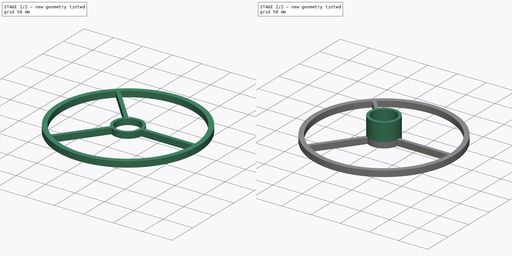
[diagram: build sequence overview — one tinted view per stage of 2, left to right]
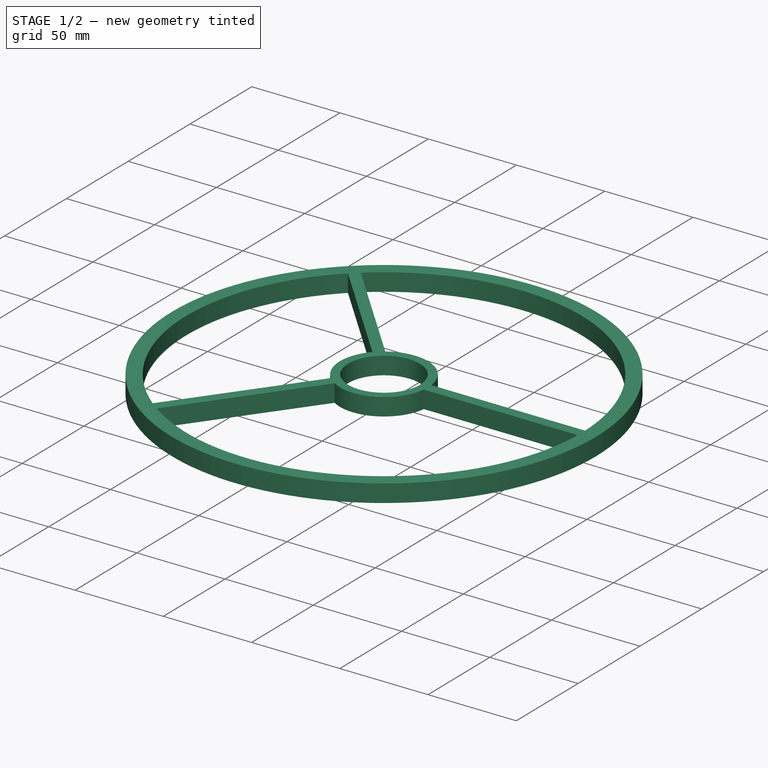
[diagram: stage 1 of 2 — iso view after this stage's code; geometry added in this stage tinted green]
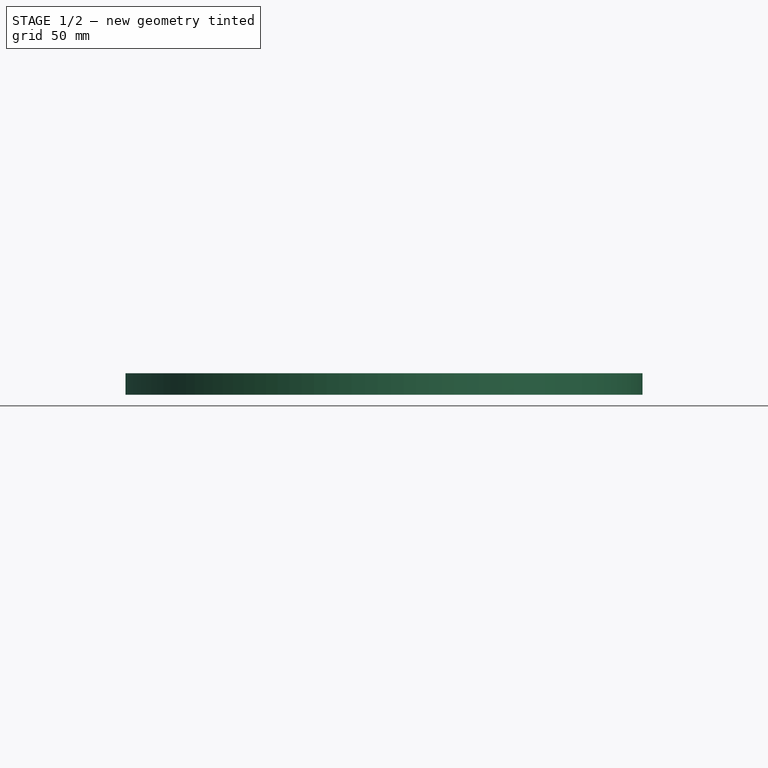
[diagram: stage 1 of 2 — front view after this stage's code; geometry added in this stage tinted green]
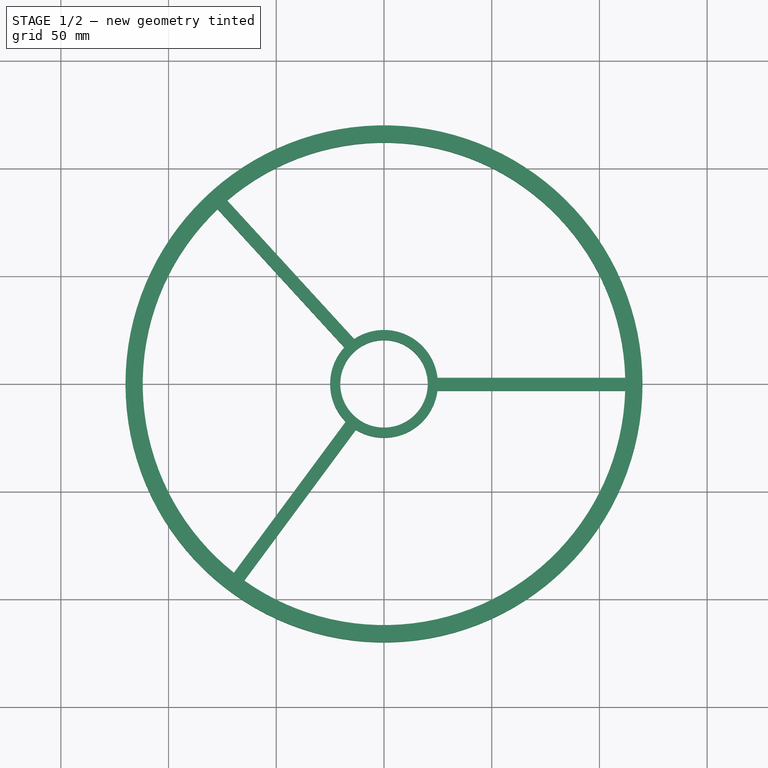
[diagram: stage 1 of 2 — top view after this stage's code; geometry added in this stage tinted green]
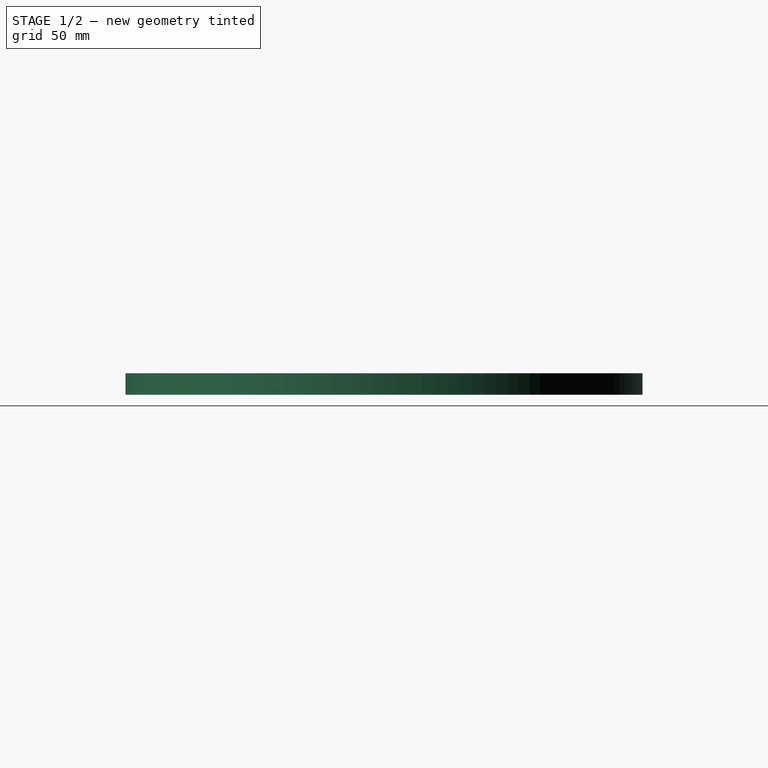
[diagram: stage 1 of 2 — right view after this stage's code; geometry added in this stage tinted green]
FCSTD DOCUMENT  (FreeCAD 0.19R23074 (Git))
Label: supporto1
License: All rights reserved
LicenseURL: http://en.wikipedia.org/wiki/All_rights_reserved
objects: Sketcher::SketchObject×2, PartDesign::Pad×2, PartDesign::Body×1
note: 7 computed .brp shape members not serialized (recipe doc carries the construction recipe); baked Part::Feature solids carry a one-line shape summary decoded from their .brp

FEATURE [Sketcher::SketchObject] Sketch
  MapMode = 5
  Support = -> [XY_Plane]
  sketch-geometry (14):
    g0: Circle CenterX=0 CenterY=0 CenterZ=0 NormalX=0 NormalY=0 NormalZ=1 AngleXU=0 Radius=120
    g1: ArcOfCircle CenterX=0 CenterY=0 CenterZ=0 NormalX=0 NormalY=0 NormalZ=1 AngleXU=0 Radius=112 StartAngle=0.0250396 EndAngle=2.27805
    g2: Circle CenterX=0 CenterY=0 CenterZ=0 NormalX=0 NormalY=0 NormalZ=1 AngleXU=0 Radius=20.3
    g3: ArcOfCircle CenterX=0 CenterY=0 CenterZ=0 NormalX=0 NormalY=0 NormalZ=1 AngleXU=0 Radius=25 StartAngle=0.112402 EndAngle=2.15743
    g4: LineSegment StartX=24.8422 StartY=2.80415 StartZ=0 EndX=111.965 EndY=2.80415 EndZ=0
    g5: LineSegment StartX=24.7949 StartY=-3.19567 StartZ=0 EndX=111.954 EndY=-3.19567 EndZ=0
    g6: LineSegment StartX=-13.076 StartY=-21.3077 StartZ=0 EndX=-64.8727 EndY=-91.2991 EndZ=0
    g7: LineSegment StartX=-17.7763 StartY=-17.5785 StartZ=0 EndX=-69.6689 EndY=-87.694 EndZ=0
    g8: ArcOfCircle CenterX=0 CenterY=0 CenterZ=0 NormalX=0 NormalY=0 NormalZ=1 AngleXU=0 Radius=25 StartAngle=4.16198 EndAngle=6.15501
    g9: ArcOfCircle CenterX=0 CenterY=0 CenterZ=0 NormalX=0 NormalY=0 NormalZ=1 AngleXU=0 Radius=112 StartAngle=4.09462 EndAngle=6.25465
    g10: LineSegment StartX=-13.839 StartY=20.8202 StartZ=0 EndX=-72.7719 EndY=85.1367 EndZ=0
    g11: LineSegment StartX=-18.4012 StartY=16.9232 StartZ=0 EndX=-77.2267 EndY=81.1174 EndZ=0
    g12: ArcOfCircle CenterX=0 CenterY=0 CenterZ=0 NormalX=0 NormalY=0 NormalZ=1 AngleXU=0 Radius=112 StartAngle=2.33163 EndAngle=4.04104
    g13: ArcOfCircle CenterX=0 CenterY=0 CenterZ=0 NormalX=0 NormalY=0 NormalZ=1 AngleXU=0 Radius=25 StartAngle=2.39801 EndAngle=3.9214
  constraints (34):
    c: Coincident(g0,g-1)
    c: Radius(g0) = 120
    c: Coincident(g1,g0)
    c: Radius(g1) = 112
    c: Coincident(g2,g0)
    c: Radius(g2) = 20.3
    c: Coincident(g3,g0)
    c: Radius(g3) = 25
    c: Horizontal(g4)
    c: Horizontal(g5)
    c: Coincident(g3,g4)
    c: Coincident(g8,g5)
    c: Coincident(g1,g4)
    c: Coincident(g9,g5)
    c: Equal(g3,g8)
    c: Coincident(g13,g7)
    c: Coincident(g8,g6)
    c: Coincident(g3,g8)
    c: Equal(g1,g9)
    c: Coincident(g12,g7)
    c: Coincident(g9,g6)
    c: Coincident(g1,g9)
    c: Distance(g13,g6) = 6
    c: Distance(g3,g5) = 6
    c: Distance(g6,g12) = 6
    c: Equal(g1,g12)
    c: Coincident(g1,g10)
    c: Coincident(g12,g11)
    c: Coincident(g1,g12)
    c: Equal(g3,g13)
    c: Coincident(g3,g10)
    c: Coincident(g13,g11)
    c: Coincident(g3,g13)
    c: Distance(g11,g3) = 6
FEATURE [PartDesign::Pad] Pad
  Direction = (1,1,1)
  Length = 10
  Length2 = 100
  Profile = -> Sketch
  Type = 0
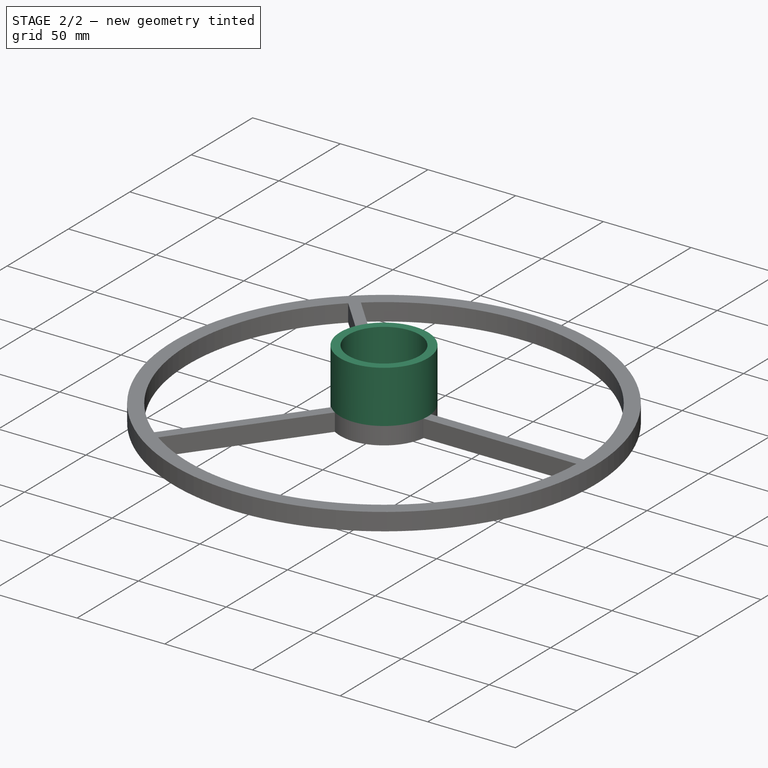
[diagram: stage 2 of 2 — iso view after this stage's code; geometry added in this stage tinted green]
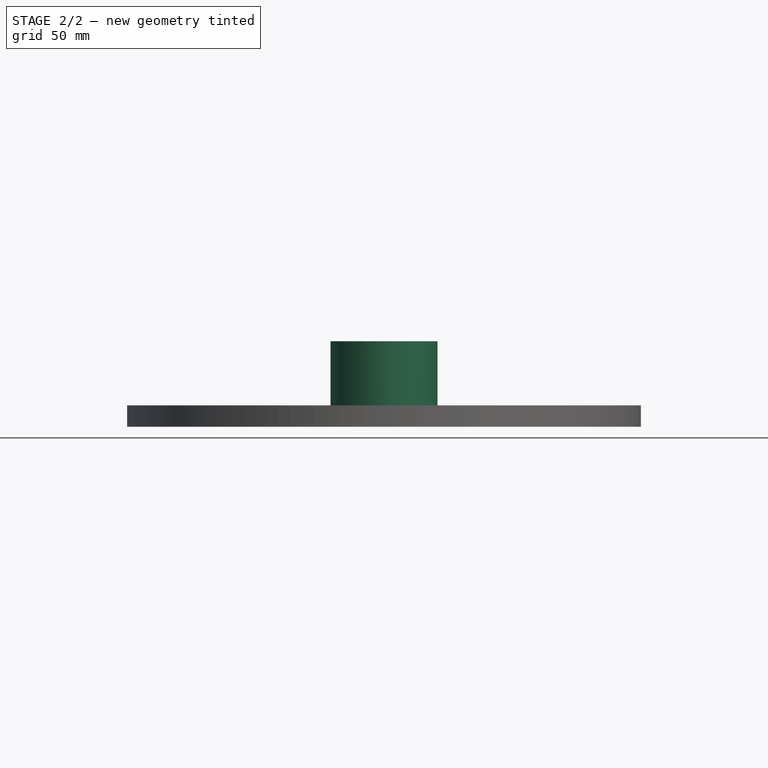
[diagram: stage 2 of 2 — front view after this stage's code; geometry added in this stage tinted green]
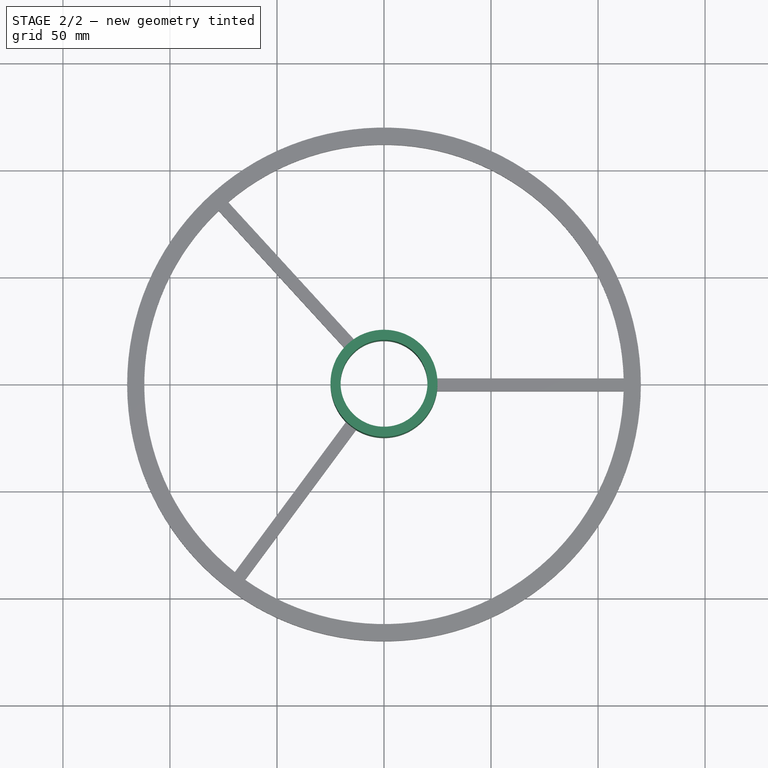
[diagram: stage 2 of 2 — top view after this stage's code; geometry added in this stage tinted green]
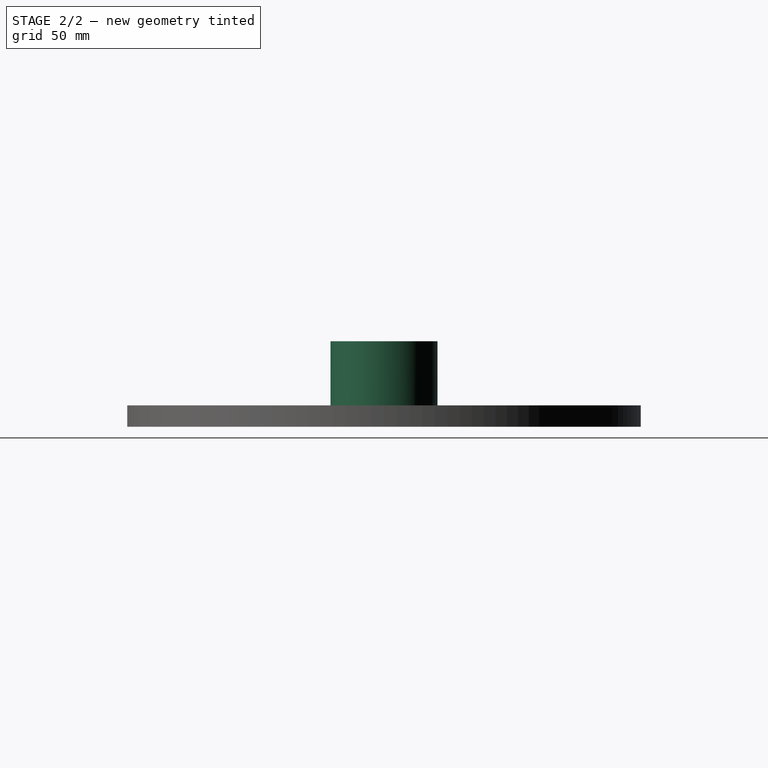
[diagram: stage 2 of 2 — right view after this stage's code; geometry added in this stage tinted green]
FEATURE [Sketcher::SketchObject] Sketch001
  MapMode = 5
  Placement = pos=(0,0,10) rot=(0,0,1;0rad)
  Support = -> [Pad]
  sketch-geometry (2):
    g0: Circle CenterX=0 CenterY=0 CenterZ=0 NormalX=0 NormalY=0 NormalZ=1 AngleXU=0 Radius=25
    g1: Circle CenterX=0 CenterY=0 CenterZ=0 NormalX=0 NormalY=0 NormalZ=1 AngleXU=0 Radius=20.3
  constraints (4):
    c: Coincident(g0,g-1)
    c: Coincident(g1,g0)
    c: Radius(g1) = 20.3
    c: Radius(g0) = 25
FEATURE [PartDesign::Pad] Pad001
  BaseFeature = -> Pad
  Direction = (1,1,1)
  Length = 30
  Length2 = 100
  Profile = -> Sketch001
  Type = 0
FEATURE [PartDesign::Body] Body
  Group = -> [Sketch,Pad,Sketch001,Pad001]
  Origin = -> Origin
  Tip = -> Pad001
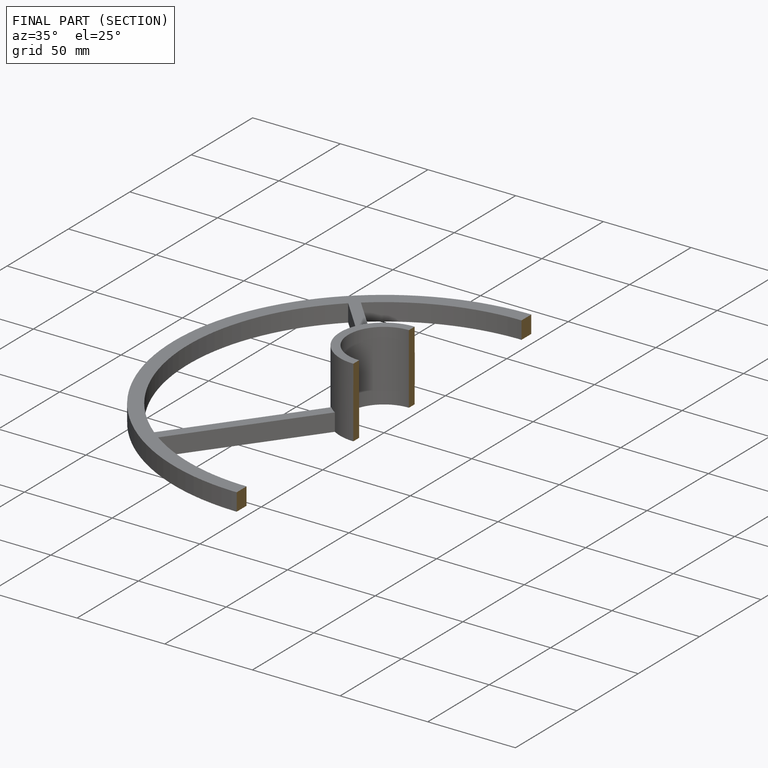
[diagram: finished part — half-section view (interior)]
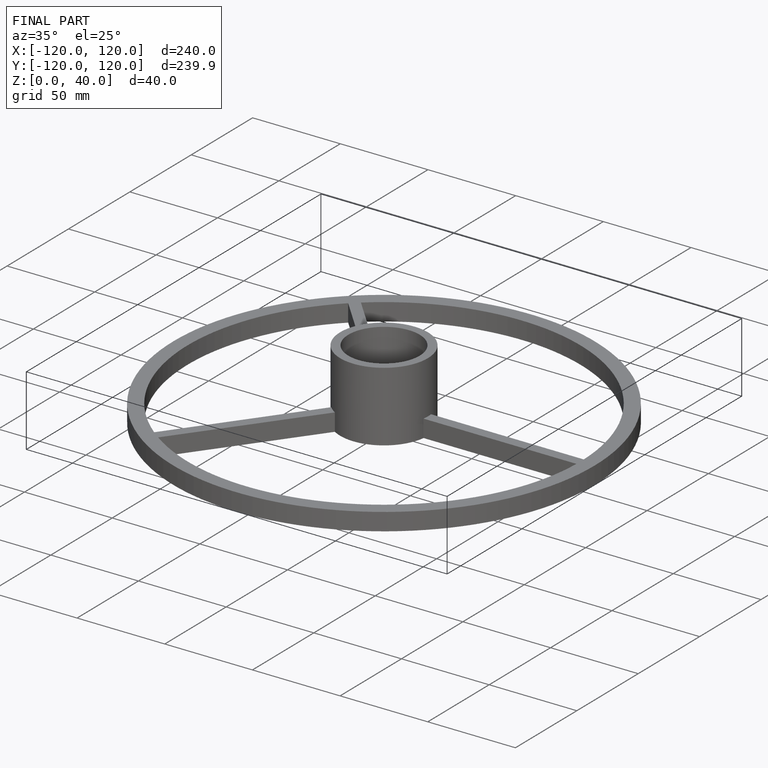
[diagram: finished part — iso view with bounding-box wireframe]
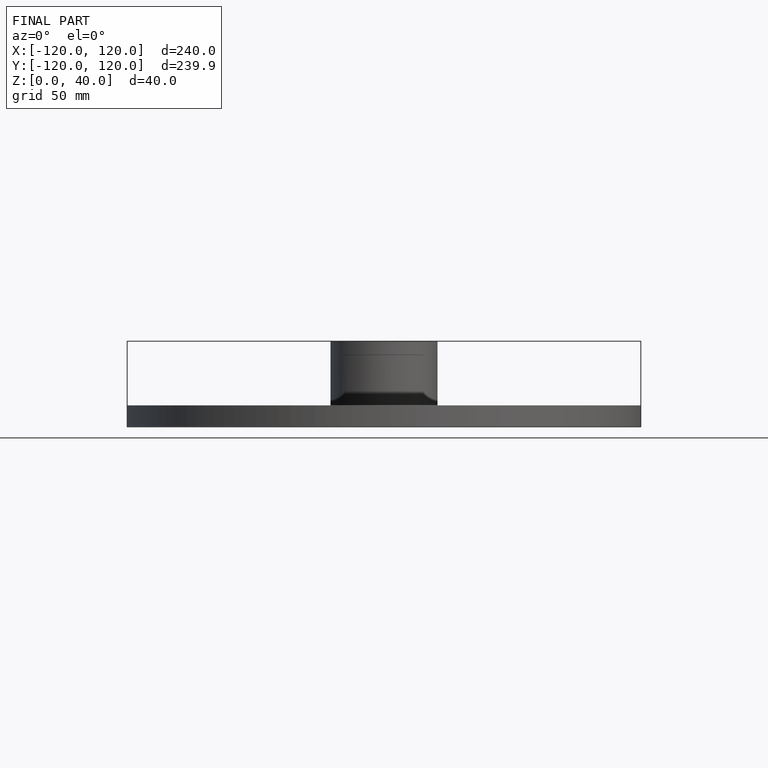
[diagram: finished part — front view with bounding-box wireframe]
